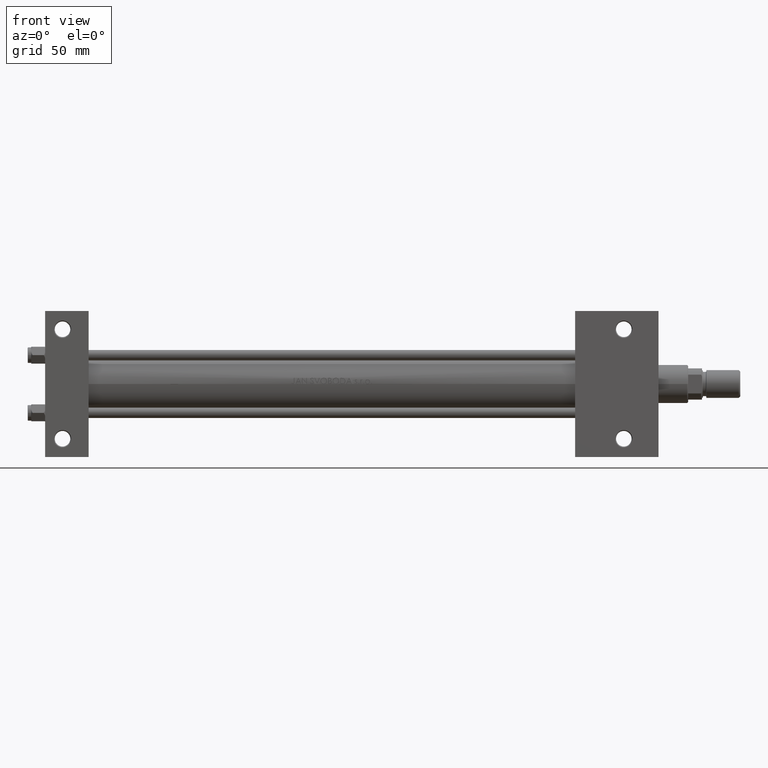
[diagram: clean part render]
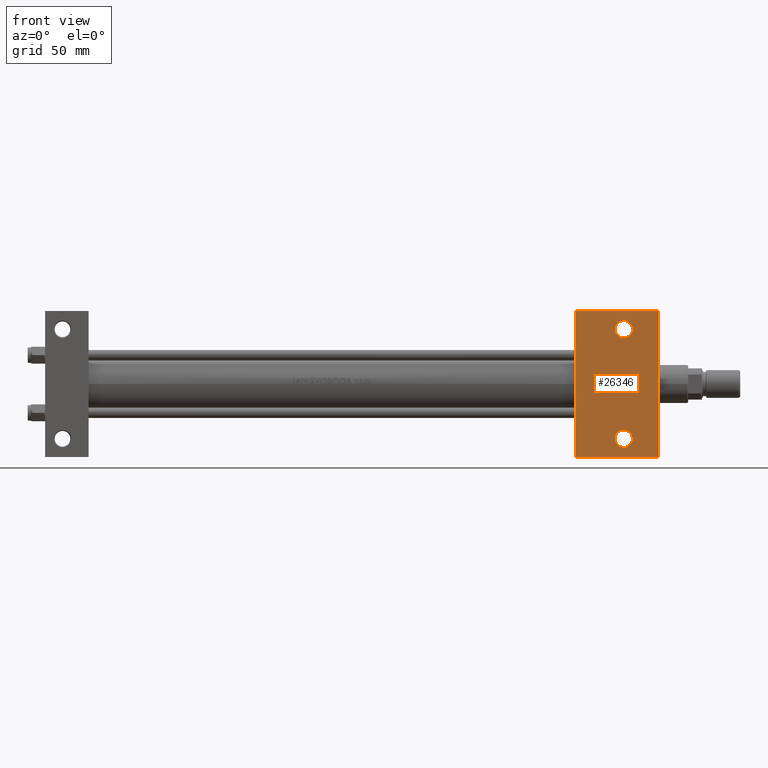
[diagram: same view with one face highlighted and labeled with its STEP entity id]
A machine part, front view. The second image highlights one B-rep face of the part: STEP entity #26346.
In plain terms, the highlighted planar face has unit normal (0, -1, -0).
Its self-contained STEP definition (entity closure, byte-faithful):
#39 = FACE_OUTER_BOUND ( 'NONE', #45805, .T. ) ;
#892 = DIRECTION ( 'NONE',  ( -1.000000000000000000, -0.000000000000000000, -0.000000000000000000 ) ) ;
#2194 = CIRCLE ( 'NONE', #23126, 4.999499999999878597 ) ;
#2383 = CARTESIAN_POINT ( 'NONE',  ( 328.0005000000001587, -31.50000000000000000, -22.50000000000000000 ) ) ;
#3346 = EDGE_CURVE ( 'NONE', #45885, #26268, #34421, .T. ) ;
#3385 = AXIS2_PLACEMENT_3D ( 'NONE', #40081, #32320, #21372 ) ;
#3455 = DIRECTION ( 'NONE',  ( 0.000000000000000000, 7.709882115452476934E-17, -1.000000000000000000 ) ) ;
#3645 = DIRECTION ( 'NONE',  ( -0.000000000000000000, -7.709882115452476934E-17, 1.000000000000000000 ) ) ;
#3930 = CIRCLE ( 'NONE', #37281, 4.999499999999878597 ) ;
#4049 = EDGE_LOOP ( 'NONE', ( #31774, #40239 ) ) ;
#6605 = VERTEX_POINT ( 'NONE', #41589 ) ;
#8105 = DIRECTION ( 'NONE',  ( 0.000000000000000000, -1.000000000000000000, -7.709882115452476934E-17 ) ) ;
#8567 = EDGE_CURVE ( 'NONE', #24358, #21150, #32066, .T. ) ;
#8862 = CARTESIAN_POINT ( 'NONE',  ( 333.0000000000000000, -31.50000000000000000, -22.50000000000000000 ) ) ;
#9101 = ORIENTED_EDGE ( 'NONE', *, *, #47960, .T. ) ;
#10165 = DIRECTION ( 'NONE',  ( 0.000000000000000000, 1.000000000000000000, 0.000000000000000000 ) ) ;
#10562 = ORIENTED_EDGE ( 'NONE', *, *, #8567, .T. ) ;
#12049 = CIRCLE ( 'NONE', #39195, 4.999499999999878597 ) ;
#13683 = CARTESIAN_POINT ( 'NONE',  ( 337.9994999999998981, -31.50000000000000000, -22.50000000000000000 ) ) ;
#13712 = CARTESIAN_POINT ( 'NONE',  ( 353.0000000000000568, -42.00000000000003553, -22.50000000000000000 ) ) ;
#14392 = FACE_BOUND ( 'NONE', #30079, .T. ) ;
#14877 = LINE ( 'NONE', #23103, #36768 ) ;
#15574 = DIRECTION ( 'NONE',  ( 1.000000000000000000, -2.891205793294679312E-16, 0.000000000000000000 ) ) ;
#16366 = ORIENTED_EDGE ( 'NONE', *, *, #23469, .T. ) ;
#17657 = ORIENTED_EDGE ( 'NONE', *, *, #44091, .T. ) ;
#18501 = LINE ( 'NONE', #36492, #28094 ) ;
#20208 = EDGE_CURVE ( 'NONE', #47907, #36842, #2194, .T. ) ;
#20413 = VECTOR ( 'NONE', #8105, 1000.000000000000000 ) ;
#21150 = VERTEX_POINT ( 'NONE', #44654 ) ;
#21372 = DIRECTION ( 'NONE',  ( 0.000000000000000000, 1.000000000000000000, 0.000000000000000000 ) ) ;
#21904 = DIRECTION ( 'NONE',  ( 0.000000000000000000, 1.000000000000000000, 7.709882115452476934E-17 ) ) ;
#23103 = CARTESIAN_POINT ( 'NONE',  ( 305.0000000000000568, 41.99999999999997868, -22.50000000000000000 ) ) ;
#23126 = AXIS2_PLACEMENT_3D ( 'NONE', #43659, #28614, #10165 ) ;
#23178 = DIRECTION ( 'NONE',  ( -0.000000000000000000, -7.709882115452476934E-17, 1.000000000000000000 ) ) ;
#23335 = ORIENTED_EDGE ( 'NONE', *, *, #47045, .F. ) ;
#23469 = EDGE_CURVE ( 'NONE', #21150, #24358, #12049, .T. ) ;
#24358 = VERTEX_POINT ( 'NONE', #29753 ) ;
#25557 = FACE_BOUND ( 'NONE', #4049, .T. ) ;
#26268 = VERTEX_POINT ( 'NONE', #31600 ) ;
#26346 = ADVANCED_FACE ( 'NONE', ( #14392, #25557, #39 ), #40373, .T. ) ;
#26782 = CARTESIAN_POINT ( 'NONE',  ( 305.0000000000000568, 22.50000000000000355, -22.49999999999999645 ) ) ;
#26871 = AXIS2_PLACEMENT_3D ( 'NONE', #44497, #3455, #21904 ) ;
#27058 = DIRECTION ( 'NONE',  ( 0.000000000000000000, 1.000000000000000000, 0.000000000000000000 ) ) ;
#28094 = VECTOR ( 'NONE', #36729, 1000.000000000000000 ) ;
#28614 = DIRECTION ( 'NONE',  ( -0.000000000000000000, -7.709882115452476934E-17, 1.000000000000000000 ) ) ;
#29753 = CARTESIAN_POINT ( 'NONE',  ( 337.9994999999999550, 31.49999999999999289, -22.49999999999999645 ) ) ;
#30079 = EDGE_LOOP ( 'NONE', ( #16366, #10562 ) ) ;
#30684 = VERTEX_POINT ( 'NONE', #39952 ) ;
#31600 = CARTESIAN_POINT ( 'NONE',  ( 305.0000000000000568, -42.00000000000003553, -22.50000000000000000 ) ) ;
#31774 = ORIENTED_EDGE ( 'NONE', *, *, #40758, .T. ) ;
#32066 = CIRCLE ( 'NONE', #3385, 4.999499999999878597 ) ;
#32320 = DIRECTION ( 'NONE',  ( -0.000000000000000000, -7.709882115452476934E-17, 1.000000000000000000 ) ) ;
#34421 = LINE ( 'NONE', #42429, #45987 ) ;
#36492 = CARTESIAN_POINT ( 'NONE',  ( 353.0000000000000568, 22.50000000000000355, -22.49999999999999645 ) ) ;
#36729 = DIRECTION ( 'NONE',  ( 0.000000000000000000, -1.000000000000000000, -7.709882115452476934E-17 ) ) ;
#36768 = VECTOR ( 'NONE', #15574, 1000.000000000000000 ) ;
#36842 = VERTEX_POINT ( 'NONE', #2383 ) ;
#37025 = LINE ( 'NONE', #26782, #20413 ) ;
#37281 = AXIS2_PLACEMENT_3D ( 'NONE', #8862, #23178, #27058 ) ;
#39195 = AXIS2_PLACEMENT_3D ( 'NONE', #40329, #3645, #44212 ) ;
#39952 = CARTESIAN_POINT ( 'NONE',  ( 353.0000000000000568, 41.99999999999996447, -22.50000000000000000 ) ) ;
#40081 = CARTESIAN_POINT ( 'NONE',  ( 333.0000000000000568, 31.49999999999999289, -22.49999999999999645 ) ) ;
#40239 = ORIENTED_EDGE ( 'NONE', *, *, #20208, .T. ) ;
#40329 = CARTESIAN_POINT ( 'NONE',  ( 333.0000000000000568, 31.49999999999999289, -22.49999999999999645 ) ) ;
#40373 = PLANE ( 'NONE',  #26871 ) ;
#40758 = EDGE_CURVE ( 'NONE', #36842, #47907, #3930, .T. ) ;
#41589 = CARTESIAN_POINT ( 'NONE',  ( 305.0000000000000568, 41.99999999999997868, -22.50000000000000000 ) ) ;
#42123 = ORIENTED_EDGE ( 'NONE', *, *, #3346, .T. ) ;
#42429 = CARTESIAN_POINT ( 'NONE',  ( 305.0000000000000568, -42.00000000000003553, -22.50000000000000000 ) ) ;
#43659 = CARTESIAN_POINT ( 'NONE',  ( 333.0000000000000000, -31.50000000000000000, -22.50000000000000000 ) ) ;
#44091 = EDGE_CURVE ( 'NONE', #30684, #45885, #18501, .T. ) ;
#44212 = DIRECTION ( 'NONE',  ( 0.000000000000000000, 1.000000000000000000, 0.000000000000000000 ) ) ;
#44497 = CARTESIAN_POINT ( 'NONE',  ( 353.0000000000000568, 22.50000000000000355, -22.49999999999999645 ) ) ;
#44654 = CARTESIAN_POINT ( 'NONE',  ( 328.0005000000002156, 31.49999999999999289, -22.49999999999999645 ) ) ;
#45805 = EDGE_LOOP ( 'NONE', ( #23335, #9101, #17657, #42123 ) ) ;
#45885 = VERTEX_POINT ( 'NONE', #13712 ) ;
#45987 = VECTOR ( 'NONE', #892, 1000.000000000000000 ) ;
#47045 = EDGE_CURVE ( 'NONE', #6605, #26268, #37025, .T. ) ;
#47907 = VERTEX_POINT ( 'NONE', #13683 ) ;
#47960 = EDGE_CURVE ( 'NONE', #6605, #30684, #14877, .T. ) ;